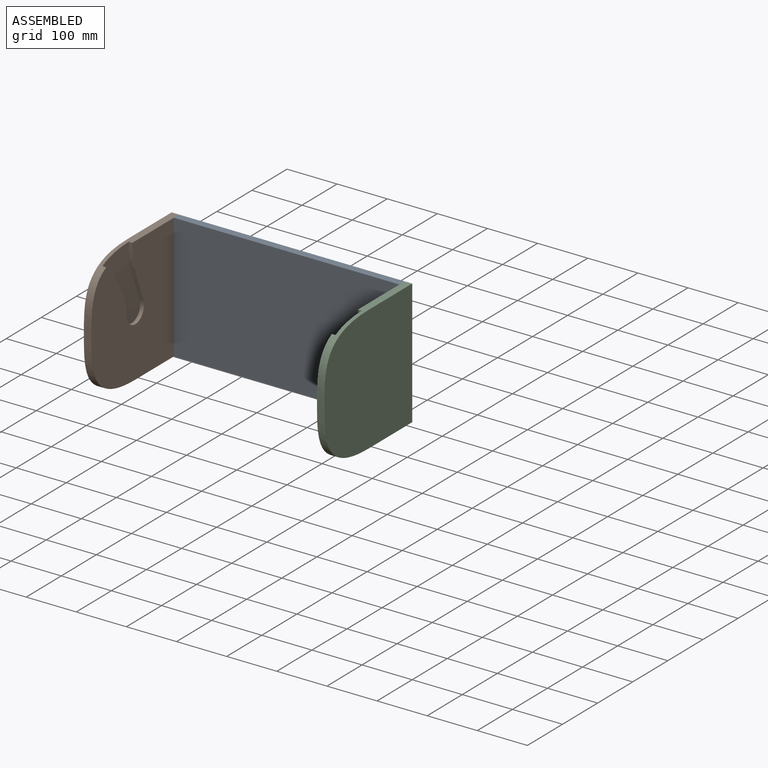
[diagram: assembled view]
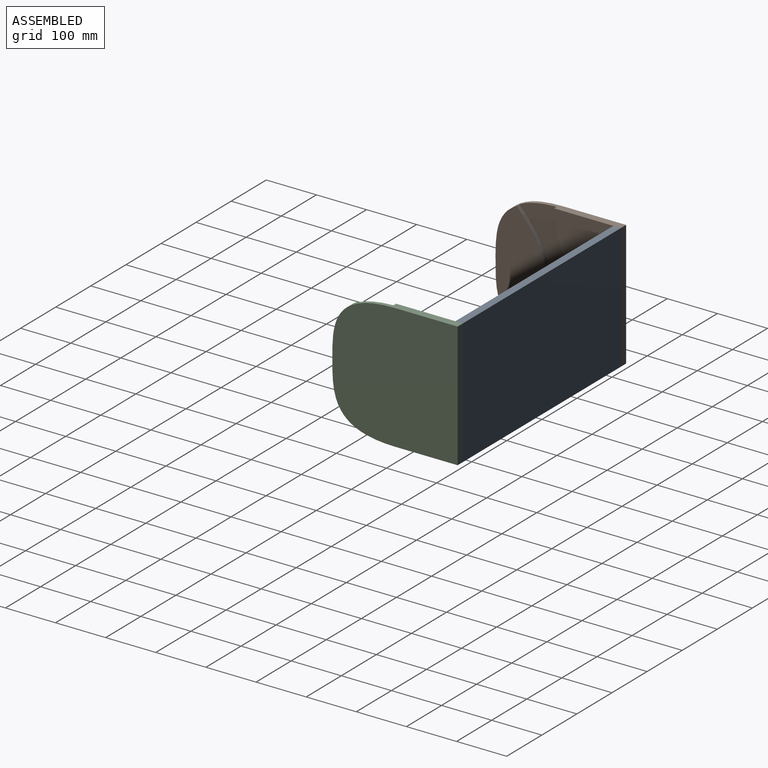
[diagram: assembled view, second angle]
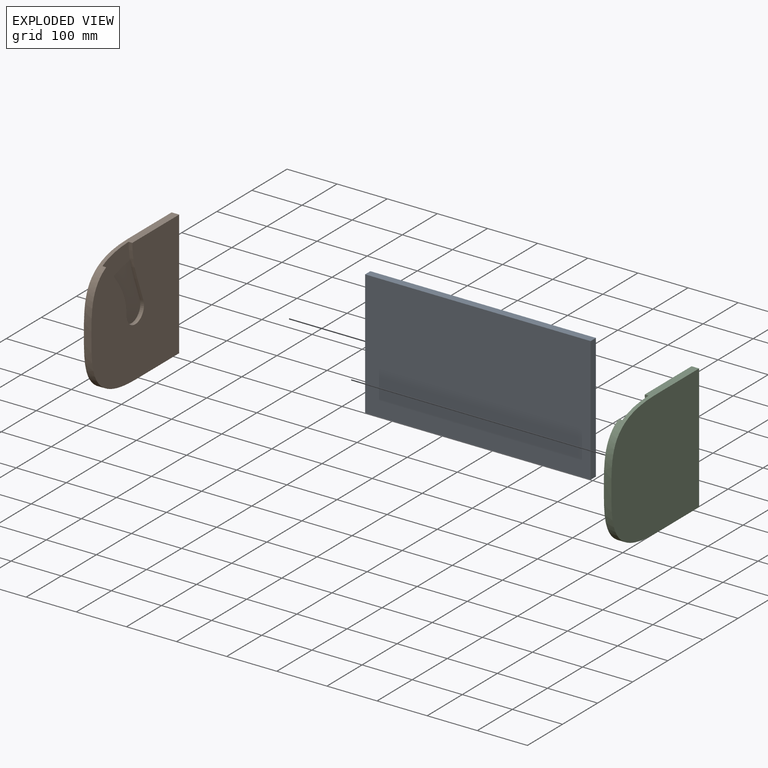
[diagram: exploded view]
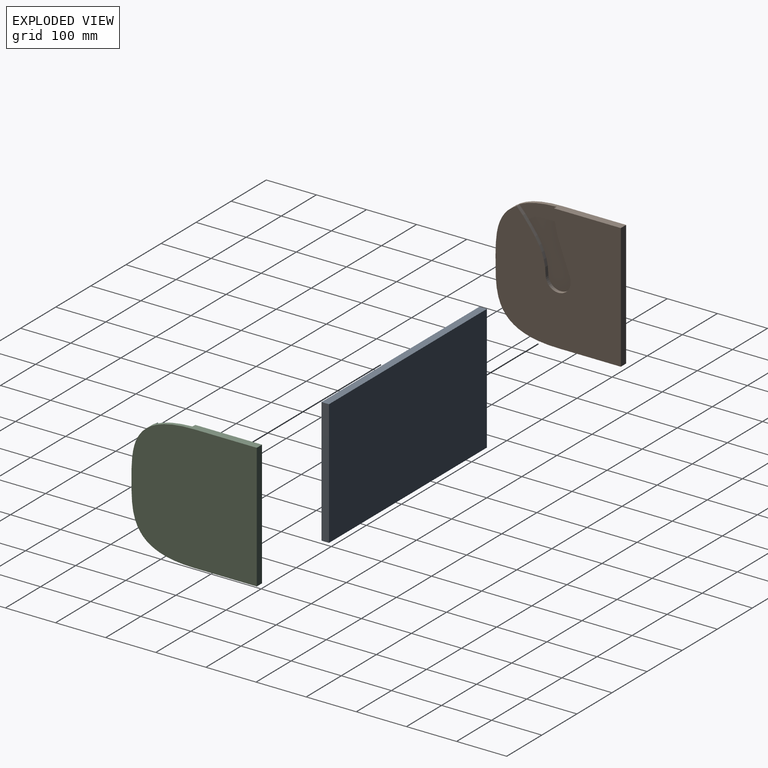
[diagram: exploded view, second angle]
ASSEMBLY  parts=3 mates=2
PART A: 6 faces, bbox 450x15x250 mm
  f0: plane 450x15mm, normal (0,0,1), area 6750mm2, adj f1,f3,f4,f5
  f1: plane 250x15mm, normal (-1,0,0), area 3750mm2, adj f0,f2,f4,f5
  f2: plane 450x15mm, normal (0,0,-1), area 6750mm2, adj f1,f3,f4,f5
  f3: plane 250x15mm, normal (1,0,0), area 3750mm2, adj f0,f2,f4,f5
  f4: plane 450x250mm, normal (0,-1,0), area 112500mm2, adj f0,f1,f2,f3
  f5: plane 450x250mm, normal (0,1,0), area 112500mm2, adj f0,f1,f2,f3
PART B: 10 faces, bbox 15x250x250 mm
  f0: plane 125x15mm, normal (0,0,-1), area 1875mm2, adj f1,f6,f7,f9
  f1: plane 250x15mm, normal (0,1,0), area 3750mm2, adj f0,f2,f7,f9
  f2: plane 125x15mm, normal (0,0,1), area 1875mm2, adj f1,f6,f7,f9
  f3: extruded ~116.57x31.99mm, area 912.2mm2, adj f4,f6,f7,f8
  f4: cylinder r=25mm len=50mm, axis (-1,0,0), area 652.8mm2, adj f3,f5,f7,f8
  f5: extruded ~109.44x57.83mm, area 951.6mm2, adj f4,f6,f7,f8
  f6: extruded ~250x125mm, area 5712.1mm2, adj f0,f2,f3,f5,f7,f8,f9
  f7: plane 250x250mm, normal (1,0,0), area 51089.6mm2, adj f0,f1,f2,f3,f4,f5,f6
  f8: plane 150x109.11mm, normal (1,0,0), area 7504.4mm2, adj f3,f4,f5,f6
  f9: plane 250x250mm, normal (-1,0,0), area 58594.2mm2, adj f0,f1,f2,f6
PART C: 10 faces, bbox 15x250x250 mm
  f0: plane 125x15mm, normal (0,0,-1), area 1875mm2, adj f1,f6,f7,f9
  f1: plane 250x15mm, normal (0,1,0), area 3750mm2, adj f0,f2,f7,f9
  f2: plane 125x15mm, normal (0,0,1), area 1875mm2, adj f1,f6,f7,f9
  f3: extruded ~116.57x31.99mm, area 912.2mm2, adj f4,f6,f7,f8
  f4: cylinder r=25mm len=50mm, axis (1,0,0), area 652.8mm2, adj f3,f5,f7,f8
  f5: extruded ~109.44x57.83mm, area 951.6mm2, adj f4,f6,f7,f8
  f6: extruded ~250x125mm, area 5712.1mm2, adj f0,f2,f3,f5,f7,f8,f9
  f7: plane 250x250mm, normal (-1,0,0), area 51089.6mm2, adj f0,f1,f2,f3,f4,f5,f6
  f8: plane 150x109.11mm, normal (-1,0,0), area 7504.4mm2, adj f3,f4,f5,f6
  f9: plane 250x250mm, normal (1,0,0), area 58594.2mm2, adj f0,f1,f2,f6
PLACE A at identity
PLACE B t=(-232.5,0,0)mm
PLACE C t=(232.5,0,0)mm
MATE fastened C.f7 <-> A.f3  axis (1,0,0) through (225,0,125)mm
MATE fastened B.f7 <-> A.f1  axis (1,0,0) through (-225,0,125)mm
